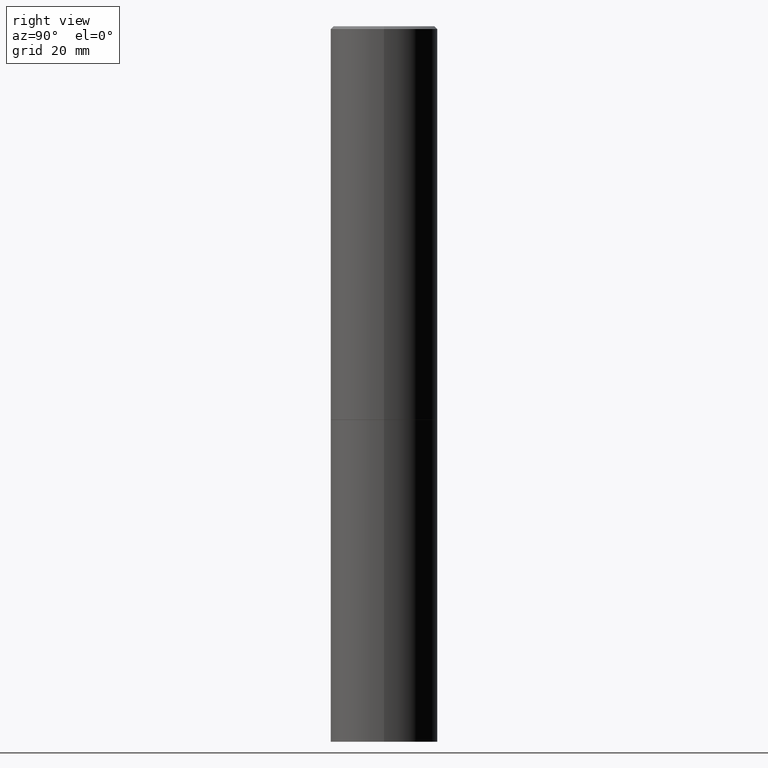
[diagram: clean part render]
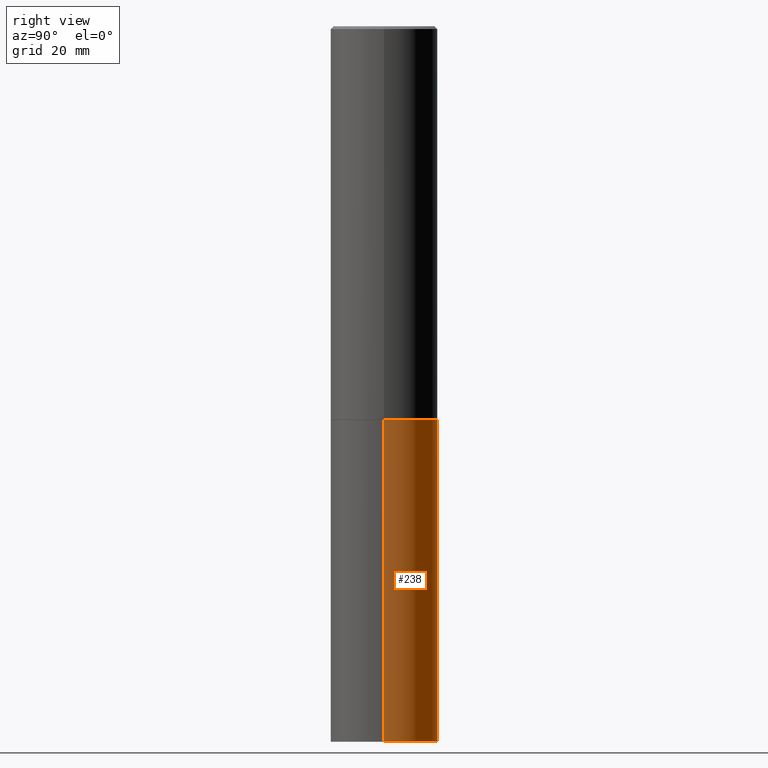
[diagram: same view with one face highlighted and labeled with its STEP entity id]
A machine part, right view. The second image highlights one B-rep face of the part: STEP entity #238.
In plain terms, the highlighted cylindrical surface (partial cylindrical patch) has radius 9.525 mm, axis along (-0, 0, 1).
Its self-contained STEP definition (entity closure, byte-faithful):
#6 = DIRECTION ( 'NONE',  ( -2.445468806185136597E-29, 3.491481338843145583E-15, 1.000000000000000000 ) ) ;
#22 = VERTEX_POINT ( 'NONE', #63 ) ;
#23 = ORIENTED_EDGE ( 'NONE', *, *, #39, .T. ) ;
#35 = AXIS2_PLACEMENT_3D ( 'NONE', #314, #6, #120 ) ;
#39 = EDGE_CURVE ( 'NONE', #22, #301, #59, .T. ) ;
#41 = VECTOR ( 'NONE', #69, 39.37007874015748143 ) ;
#48 = EDGE_LOOP ( 'NONE', ( #23, #137, #287, #92 ) ) ;
#59 = CIRCLE ( 'NONE', #35, 0.3750000000000000555 ) ;
#63 = CARTESIAN_POINT ( 'NONE',  ( 0.3750000000000000555, -2.007601769834807990E-14, -5.000000000000000000 ) ) ;
#69 = DIRECTION ( 'NONE',  ( -2.445468806185136877E-29, 3.491481338843145188E-15, 1.000000000000000000 ) ) ;
#92 = ORIENTED_EDGE ( 'NONE', *, *, #99, .F. ) ;
#95 = CARTESIAN_POINT ( 'NONE',  ( 6.725039217009124520E-29, -9.601573681818649859E-15, -2.750000000000000000 ) ) ;
#99 = EDGE_CURVE ( 'NONE', #22, #172, #212, .T. ) ;
#108 = CARTESIAN_POINT ( 'NONE',  ( -0.3750000000000000555, 2.664535259100376091E-15, -1.844600658845589598E-29 ) ) ;
#120 = DIRECTION ( 'NONE',  ( 1.000000000000000000, -6.982962677686266711E-15, 0.000000000000000000 ) ) ;
#137 = ORIENTED_EDGE ( 'NONE', *, *, #282, .T. ) ;
#141 = DIRECTION ( 'NONE',  ( 1.000000000000000000, -6.982962677686265922E-15, 4.876176775795935793E-29 ) ) ;
#161 = CARTESIAN_POINT ( 'NONE',  ( 0.3750000000000000555, -1.222018468595100145E-14, -2.750000000000000000 ) ) ;
#166 = DIRECTION ( 'NONE',  ( -2.445468806185136597E-29, 3.491481338843145583E-15, 1.000000000000000000 ) ) ;
#171 = CARTESIAN_POINT ( 'NONE',  ( -0.3750000000000000555, -1.086495492891681496E-14, -2.750000000000000000 ) ) ;
#172 = VERTEX_POINT ( 'NONE', #161 ) ;
#205 = EDGE_CURVE ( 'NONE', #172, #291, #277, .T. ) ;
#212 = LINE ( 'NONE', #299, #41 ) ;
#224 = LINE ( 'NONE', #108, #324 ) ;
#238 = ADVANCED_FACE ( 'NONE', ( #254 ), #279, .T. ) ;
#254 = FACE_OUTER_BOUND ( 'NONE', #48, .T. ) ;
#268 = AXIS2_PLACEMENT_3D ( 'NONE', #95, #166, #274 ) ;
#274 = DIRECTION ( 'NONE',  ( 1.000000000000000000, -6.982962677686266711E-15, 0.000000000000000000 ) ) ;
#275 = CARTESIAN_POINT ( 'NONE',  ( -0.3750000000000000555, -1.086495492891681496E-14, -5.000000000000000000 ) ) ;
#277 = CIRCLE ( 'NONE', #268, 0.3750000000000000555 ) ;
#279 = CYLINDRICAL_SURFACE ( 'NONE', #284, 0.3750000000000000555 ) ;
#282 = EDGE_CURVE ( 'NONE', #301, #291, #224, .T. ) ;
#284 = AXIS2_PLACEMENT_3D ( 'NONE', #327, #305, #141 ) ;
#287 = ORIENTED_EDGE ( 'NONE', *, *, #205, .F. ) ;
#291 = VERTEX_POINT ( 'NONE', #171 ) ;
#299 = CARTESIAN_POINT ( 'NONE',  ( 0.3750000000000000555, -2.618611004132350016E-15, 1.828566290923476203E-29 ) ) ;
#301 = VERTEX_POINT ( 'NONE', #275 ) ;
#305 = DIRECTION ( 'NONE',  ( -2.445468806185136597E-29, 3.491481338843145583E-15, 1.000000000000000000 ) ) ;
#314 = CARTESIAN_POINT ( 'NONE',  ( 1.222734403092568523E-28, -1.745740669421572989E-14, -5.000000000000000000 ) ) ;
#324 = VECTOR ( 'NONE', #362, 39.37007874015748143 ) ;
#327 = CARTESIAN_POINT ( 'NONE',  ( 0.000000000000000000, 0.000000000000000000, 0.000000000000000000 ) ) ;
#362 = DIRECTION ( 'NONE',  ( -2.445468806185136877E-29, 3.491481338843145188E-15, 1.000000000000000000 ) ) ;